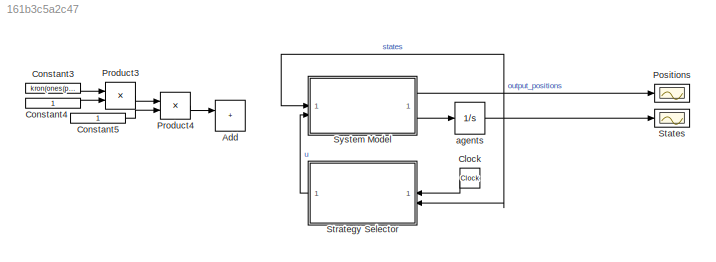
MODEL slx_161b3c5a2c47
KIND model
CONFIG AbsTol = auto
CONFIG EnableMultiTasking = off
CONFIG FixedStep = auto
CONFIG MaxStep = auto
CONFIG MinStep = auto
CONFIG RelTol = 1e-3
CONFIG SampleTimeConstraint = Unconstrained
CONFIG SolverName = VariableStepAuto
CONFIG StartTime = 0.0
CONFIG StopTime = params.T
BLOCK [Sum] Add
  IconShape = rectangular
BLOCK [Clock] Clock
BLOCK [Constant] Constant3
  Value = kron(ones(params.N, 1), [1 0 0]')
BLOCK [Constant] Constant4
BLOCK [Constant] Constant5
BLOCK [Scope] Positions
  Floating = off
  NameLocation = right
  NumInputPorts = 1
  ScopeSpecificationString = Simulink.scopes.TimeScopeBlockCfg('CurrentConfiguration', extmgr.ConfigurationSet(extmgr.Configuration('Core','General UI',true),extmgr.Configuration('Core','Source UI',true),extmgr.Configuration('Sources','WiredSimulink',true,'DataLoggingVariableName','ScopeData1'),extmgr.Configuration('Visuals','Time Domain',true,'SerializedDisplays',{struct('MinYLimReal','-33.78603','MaxYLimReal','56.56601','YL...<+1558ch>
BLOCK [Product] Product3
BLOCK [Product] Product4
BLOCK [Scope] States
  Floating = off
  NameLocation = right
  NumInputPorts = 1
  ScopeSpecificationString = Simulink.scopes.TimeScopeBlockCfg('CurrentConfiguration', extmgr.ConfigurationSet(extmgr.Configuration('Core','General UI',true),extmgr.Configuration('Core','Source UI',true),extmgr.Configuration('Sources','WiredSimulink',true),extmgr.Configuration('Visuals','Time Domain',true,'SerializedDisplays',{struct('MinYLimReal','-33.78603','MaxYLimReal','56.56601','YLabelReal','','MinYLimMag','0.00000','Ma...<+1529ch>
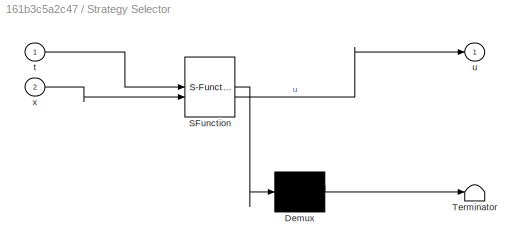
BLOCK [SubSystem] Strategy Selector
  ErrorFcn = Stateflow.Translate.translate
  LibrarySourceBlock = simulink/User-Defined\nFunctions/MATLAB Function
  PermitHierarchicalResolution = ExplicitOnly
  SFBlockType = MATLAB Function
  TreatAsAtomicUnit = on
BLOCK [Demux] Strategy Selector/ Demux 
  Outputs = 1
BLOCK [S-Function] Strategy Selector/ SFunction 
  EnableBusSupport = on
  FunctionName = sf_sfun
  Parameters = dfc_opnash,graph,initial,model,params
  PortCounts = [2 2]
  SFcnIsStateOwnerBlock = off
  SFunctionDeploymentMode = off
  Tag = Stateflow S-Function 1
BLOCK [Terminator] Strategy Selector/ Terminator 
BLOCK [Inport] Strategy Selector/t
BLOCK [Outport] Strategy Selector/u
BLOCK [Inport] Strategy Selector/x
  Port = 2
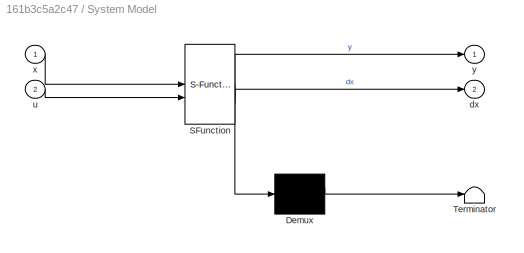
BLOCK [SubSystem] System Model
  ErrorFcn = Stateflow.Translate.translate
  LibrarySourceBlock = simulink/User-Defined\nFunctions/MATLAB Function
  PermitHierarchicalResolution = ExplicitOnly
  SFBlockType = MATLAB Function
  TreatAsAtomicUnit = on
BLOCK [Demux] System Model/ Demux 
  Outputs = 1
BLOCK [S-Function] System Model/ SFunction 
  EnableBusSupport = on
  FunctionName = sf_sfun
  Parameters = model,params
  PortCounts = [2 3]
  SFcnIsStateOwnerBlock = off
  SFunctionDeploymentMode = off
  Tag = Stateflow S-Function 2
BLOCK [Terminator] System Model/ Terminator 
BLOCK [Outport] System Model/dx
  Port = 2
BLOCK [Inport] System Model/u
  Port = 2
BLOCK [Inport] System Model/x
BLOCK [Outport] System Model/y
BLOCK [Integrator] agents
  ContinuousStateAttributes = 'x'
  InitialCondition = initial.state
LINE Clock:1 -> Strategy Selector:1
LINE Constant3:1 -> Product3:1
LINE Constant4:1 -> Product3:2
LINE Constant5:1 -> Product4:2
LINE Product3:1 -> Product4:1
LINE Product4:1 -> Add:1
LINE Strategy Selector:1 -> System Model:2
LINE System Model:1 -> Positions:1
LINE System Model:2 -> agents:1
NET agents:1 -> States:1, Strategy Selector:2, System Model:1
note: NET lines group one-source signal fan-out (src -> all destinations, sorted); 1:1 wires keep LINE
CHART Strategy Selector states=1 transitions=1
  STATE_LABEL 'eML_blk_kernel()'
  STATE_LABEL 'SCRIPT:\nfunction u = strategy_selector(t, x, params, initial, model, graph, dfc_opnash)\n    u = open_loop_nash(t, x, params, initial, model, graph, dfc_opnash);\nend\n'
CHART System Model states=1 transitions=1
  STATE_LABEL 'eML_blk_kernel()'
  STATE_LABEL 'SCRIPT:\nfunction [y, dx] = system_model(x, u, params, model)\n    n = params.n;\n    m = params.m;\n    p = params.p;\n   \n    dx = zeros(params.N * params.n, 1);\n    y = zeros(params.N * params.m, 1);\n    for i = 1:params.N\n        [dx((i-1)*n+1 : i*n), y((i-1)*m+1 : i*m)] = ...\n            agent_model(x((i-1)*n+1 : i*n), u((i-1)*p+1 : i*p), model);\n    end\nend\n'
CHART  states=0 transitions=0
CHART  states=0 transitions=0
